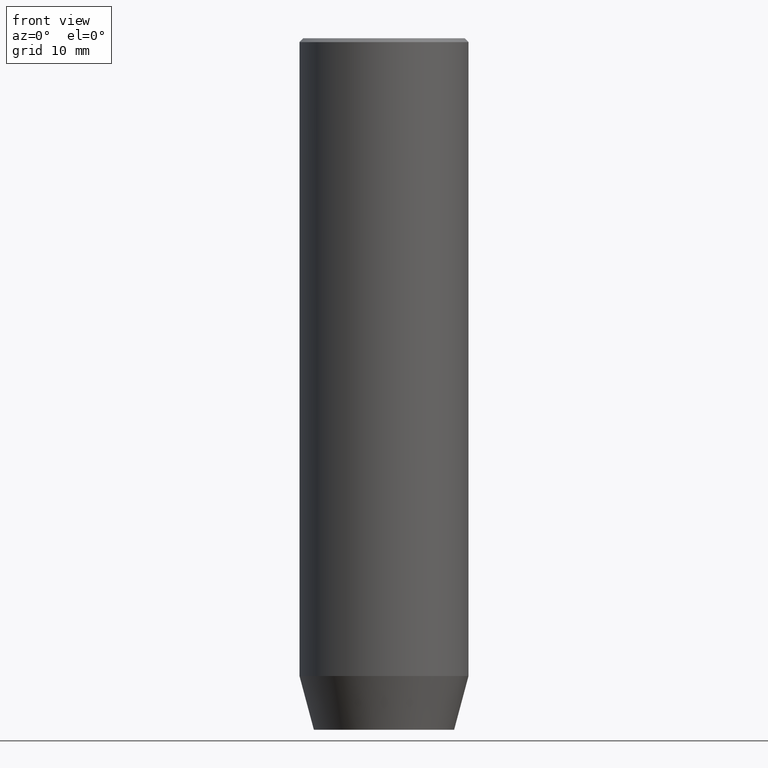
[diagram: clean part render]
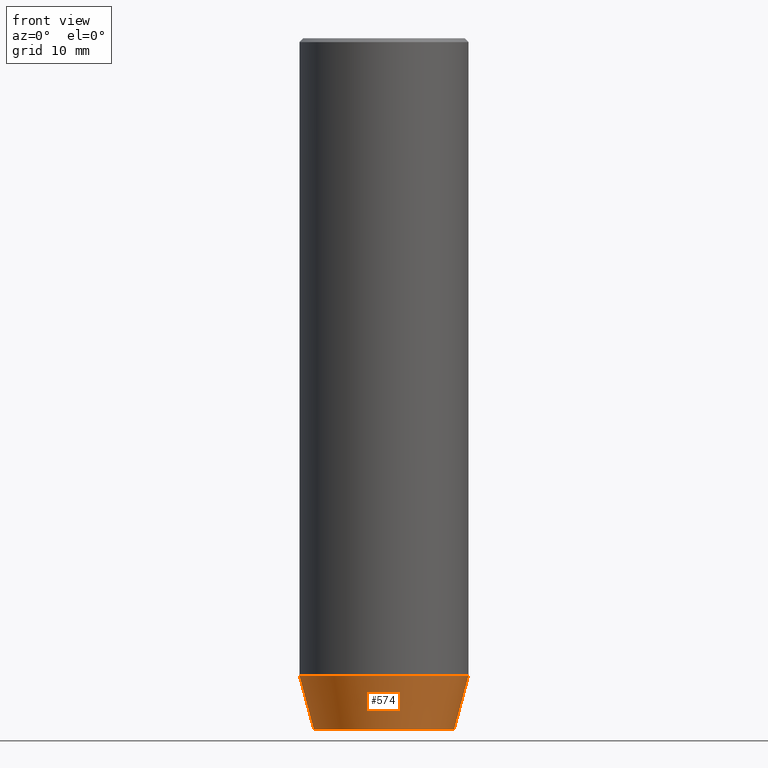
[diagram: same view with one face highlighted and labeled with its STEP entity id]
A machine part, front view. The second image highlights one B-rep face of the part: STEP entity #574.
In plain terms, the highlighted conical surface has half-angle 15 deg.
Its self-contained STEP definition (entity closure, byte-faithful):
#4 = EDGE_LOOP ( 'NONE', ( #456, #184, #555, #200 ) ) ;
#33 = EDGE_CURVE ( 'NONE', #244, #201, #260, .T. ) ;
#44 = DIRECTION ( 'NONE',  ( 1.000000000000000000, 0.000000000000000000, 0.000000000000000000 ) ) ;
#64 = CARTESIAN_POINT ( 'NONE',  ( 9.124355652982133691, 0.000000000000000000, -90.00000000000000000 ) ) ;
#70 = EDGE_CURVE ( 'NONE', #278, #564, #347, .T. ) ;
#85 = CARTESIAN_POINT ( 'NONE',  ( -11.00000000000000000, 1.347111479062088405E-15, -82.99999999999998579 ) ) ;
#95 = LINE ( 'NONE', #85, #208 ) ;
#99 = CARTESIAN_POINT ( 'NONE',  ( 0.000000000000000000, 0.000000000000000000, -82.99999999999998579 ) ) ;
#114 = CARTESIAN_POINT ( 'NONE',  ( -11.00000000000000000, 1.347111479062088405E-15, -82.99999999999998579 ) ) ;
#131 = DIRECTION ( 'NONE',  ( -0.2588190451025213501, 3.169619151431772337E-17, 0.9659258262890680902 ) ) ;
#152 = LINE ( 'NONE', #471, #209 ) ;
#184 = ORIENTED_EDGE ( 'NONE', *, *, #70, .T. ) ;
#186 = FACE_OUTER_BOUND ( 'NONE', #4, .T. ) ;
#197 = DIRECTION ( 'NONE',  ( 0.2588190451025213501, 0.000000000000000000, 0.9659258262890680902 ) ) ;
#200 = ORIENTED_EDGE ( 'NONE', *, *, #33, .F. ) ;
#201 = VERTEX_POINT ( 'NONE', #376 ) ;
#208 = VECTOR ( 'NONE', #131, 1000.000000000000000 ) ;
#209 = VECTOR ( 'NONE', #197, 1000.000000000000000 ) ;
#244 = VERTEX_POINT ( 'NONE', #114 ) ;
#260 = CIRCLE ( 'NONE', #345, 11.00000000000000000 ) ;
#278 = VERTEX_POINT ( 'NONE', #388 ) ;
#280 = DIRECTION ( 'NONE',  ( 1.000000000000000000, 0.000000000000000000, 0.000000000000000000 ) ) ;
#283 = DIRECTION ( 'NONE',  ( -0.000000000000000000, -0.000000000000000000, 1.000000000000000000 ) ) ;
#293 = CARTESIAN_POINT ( 'NONE',  ( 0.000000000000000000, 0.000000000000000000, -82.99999999999998579 ) ) ;
#345 = AXIS2_PLACEMENT_3D ( 'NONE', #293, #469, #415 ) ;
#347 = CIRCLE ( 'NONE', #432, 9.124355652982133691 ) ;
#376 = CARTESIAN_POINT ( 'NONE',  ( 11.00000000000000000, 0.000000000000000000, -82.99999999999998579 ) ) ;
#384 = AXIS2_PLACEMENT_3D ( 'NONE', #99, #283, #44 ) ;
#388 = CARTESIAN_POINT ( 'NONE',  ( -9.124355652982133691, 1.232261386766375507E-15, -90.00000000000000000 ) ) ;
#402 = CARTESIAN_POINT ( 'NONE',  ( 0.000000000000000000, 0.000000000000000000, -90.00000000000000000 ) ) ;
#415 = DIRECTION ( 'NONE',  ( 1.000000000000000000, 0.000000000000000000, 0.000000000000000000 ) ) ;
#432 = AXIS2_PLACEMENT_3D ( 'NONE', #402, #585, #280 ) ;
#456 = ORIENTED_EDGE ( 'NONE', *, *, #492, .F. ) ;
#469 = DIRECTION ( 'NONE',  ( -0.000000000000000000, -0.000000000000000000, 1.000000000000000000 ) ) ;
#471 = CARTESIAN_POINT ( 'NONE',  ( 11.00000000000000000, 0.000000000000000000, -82.99999999999998579 ) ) ;
#476 = CONICAL_SURFACE ( 'NONE', #384, 11.00000000000000000, 0.2617993877991500740 ) ;
#492 = EDGE_CURVE ( 'NONE', #278, #244, #95, .T. ) ;
#525 = EDGE_CURVE ( 'NONE', #564, #201, #152, .T. ) ;
#555 = ORIENTED_EDGE ( 'NONE', *, *, #525, .T. ) ;
#564 = VERTEX_POINT ( 'NONE', #64 ) ;
#574 = ADVANCED_FACE ( 'NONE', ( #186 ), #476, .T. ) ;
#585 = DIRECTION ( 'NONE',  ( -0.000000000000000000, -0.000000000000000000, 1.000000000000000000 ) ) ;